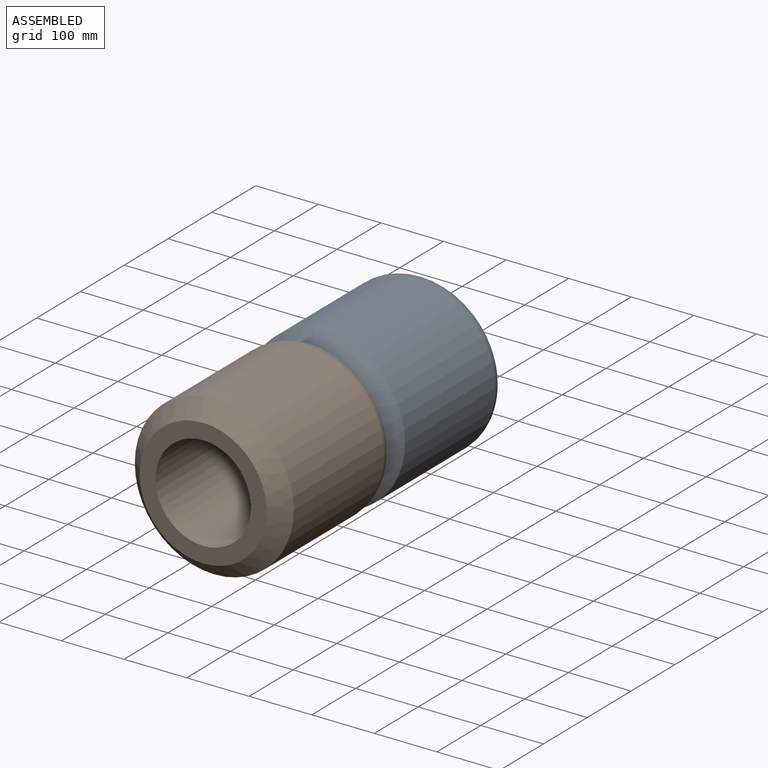
[diagram: assembled view]
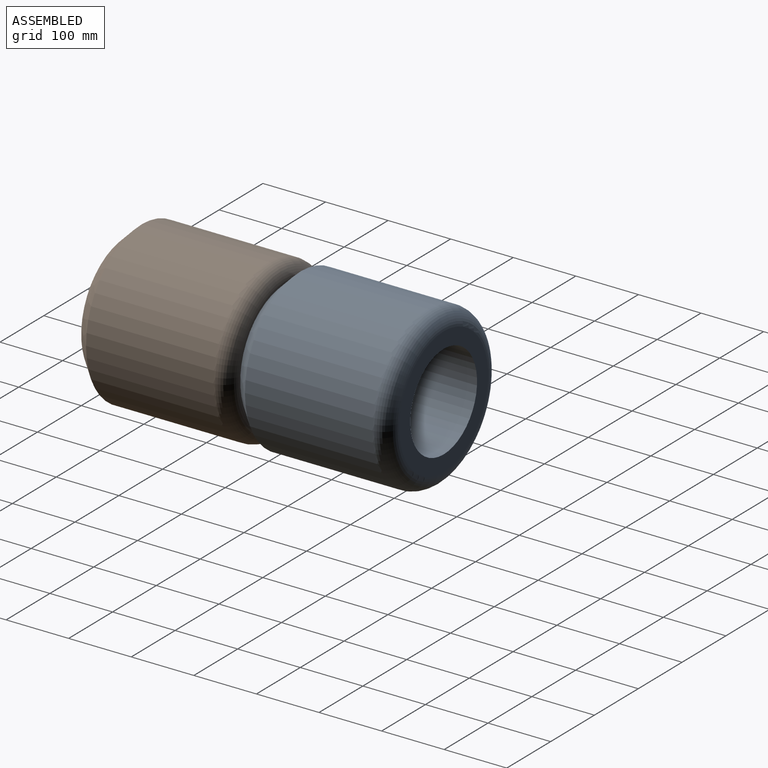
[diagram: assembled view, second angle]
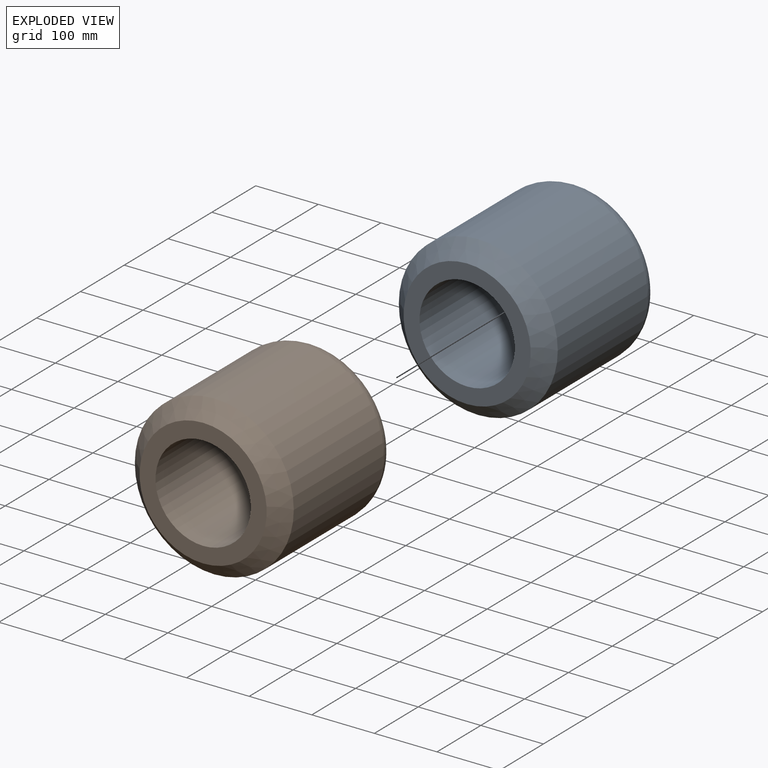
[diagram: exploded view]
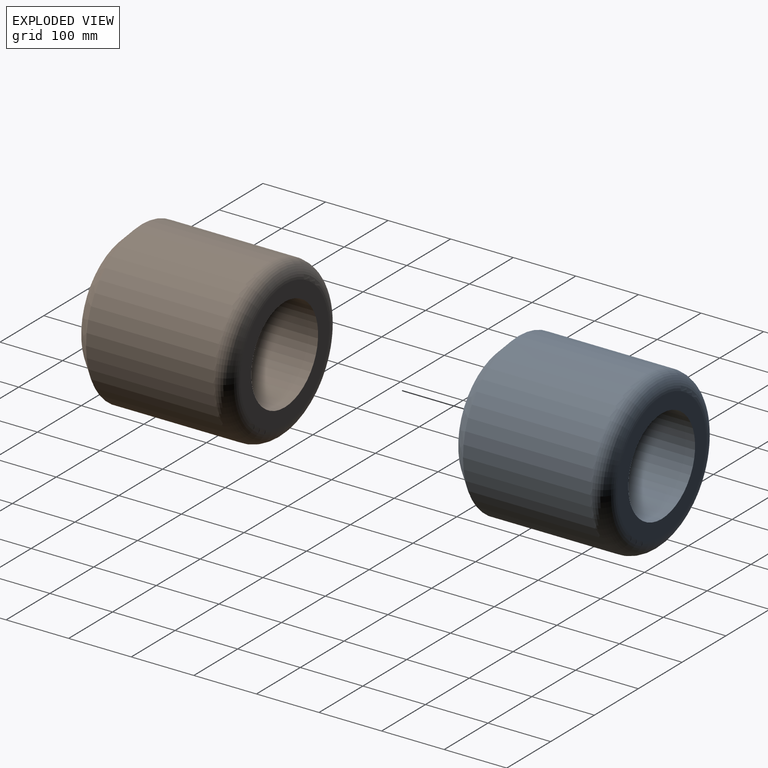
[diagram: exploded view, second angle]
ASSEMBLY  parts=2 mates=2
PART A: 6 faces, bbox 274.9x254x274.9 mm
  f0: cylinder r=127mm len=254mm, axis (0,-1,0), area 162146.4mm2, adj f4,f5
  f1: plane 203.2x203.2mm, normal (0,1,0), area 14187.8mm2, adj f3,f5
  f2: plane 203.2x203.2mm, normal (0,-1,0), area 14187.8mm2, adj f3,f4
  f3: cylinder r=76.2mm len=254mm, axis (0,-1,0), area 121609.8mm2, adj f1,f2
  f4: cone r=101.6mm half-angle=45deg, axis (0,1,0), area 25797.3mm2, adj f0,f2
  f5: torus R=101.6mm, axis (0,-1,0), area 29523.6mm2, adj f0,f1
PART B: same geometry as A
PLACE A t=(-42.54,-4.69,70.47)mm
PLACE B t=(-42.54,-258.69,70.47)mm fixed
MATE fastened B.f0 <-> A.f0  axis (0,1,0) through (-42.54,-4.69,70.47)mm
MATE slider A.f3 <-> B.f3  axis (0,-1,0) through (-42.54,249.31,70.47)mm
